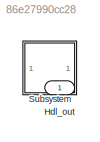
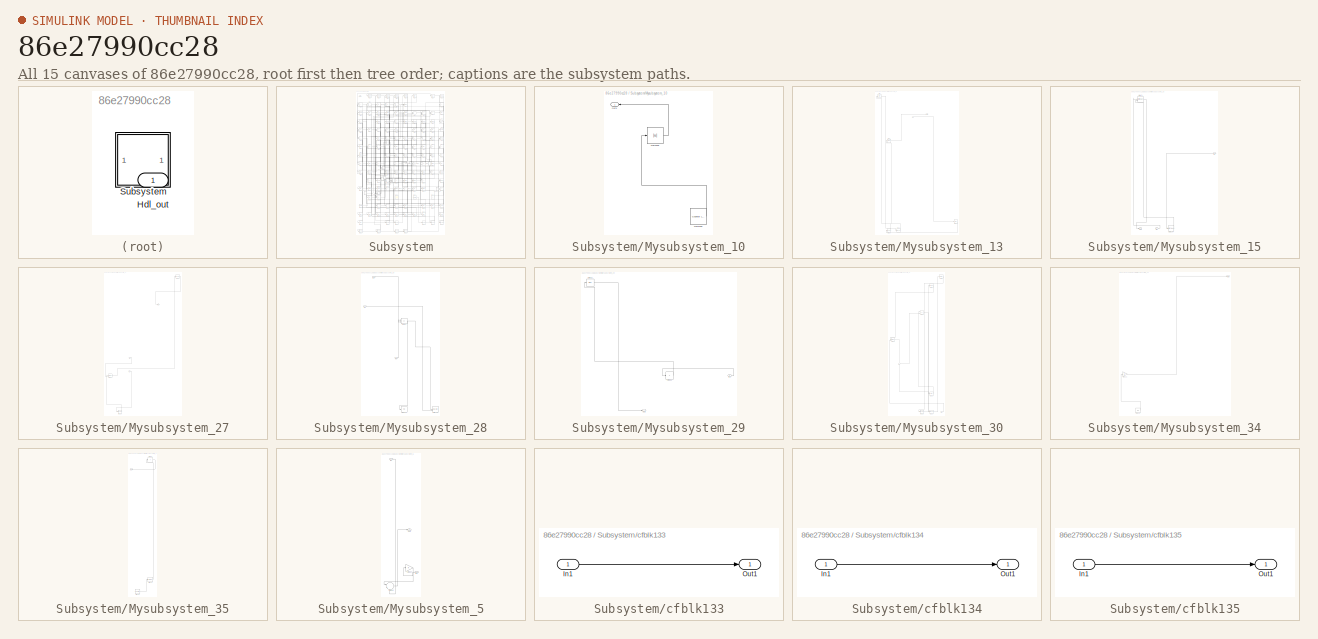
[diagram: thumbnail index - all 15 canvases of the model, root first then tree order]
MODEL slx_86e27990cc28
KIND model
CONFIG AbsTol = auto
CONFIG EnableMultiTasking = off
CONFIG FixedStep = auto
CONFIG MaxStep = auto
CONFIG MinStep = auto
CONFIG RelTol = 1e-3
CONFIG SampleTimeConstraint = Unconstrained
CONFIG SolverName = VariableStepAuto
CONFIG StartTime = 0.0
CONFIG StopTime = 10.0
BLOCK [Outport] Hdl_out
  OutDataTypeStr = uint8
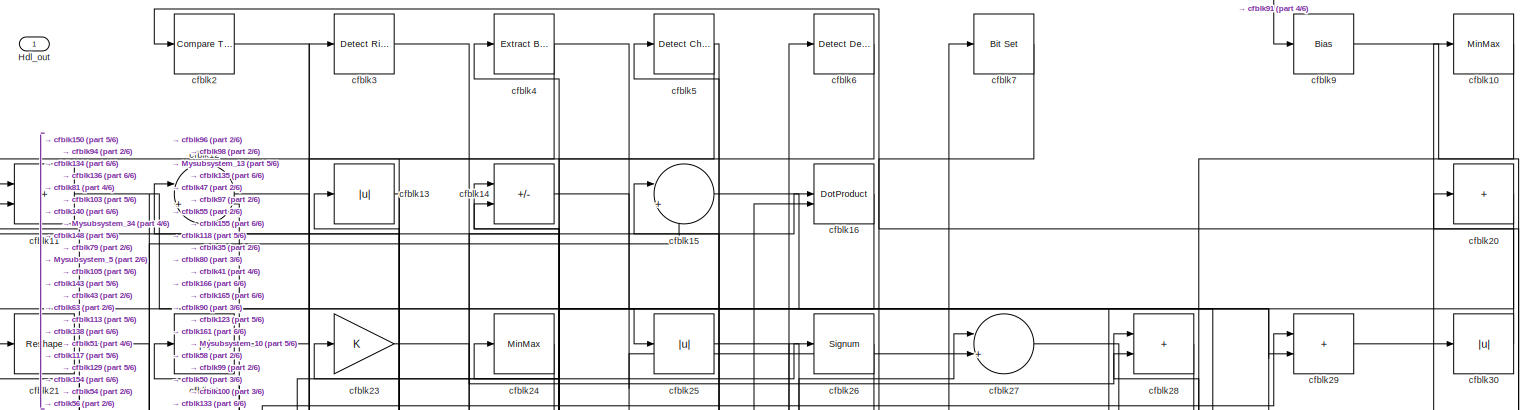
[diagram: Subsystem - part 1/6, full width, top band]
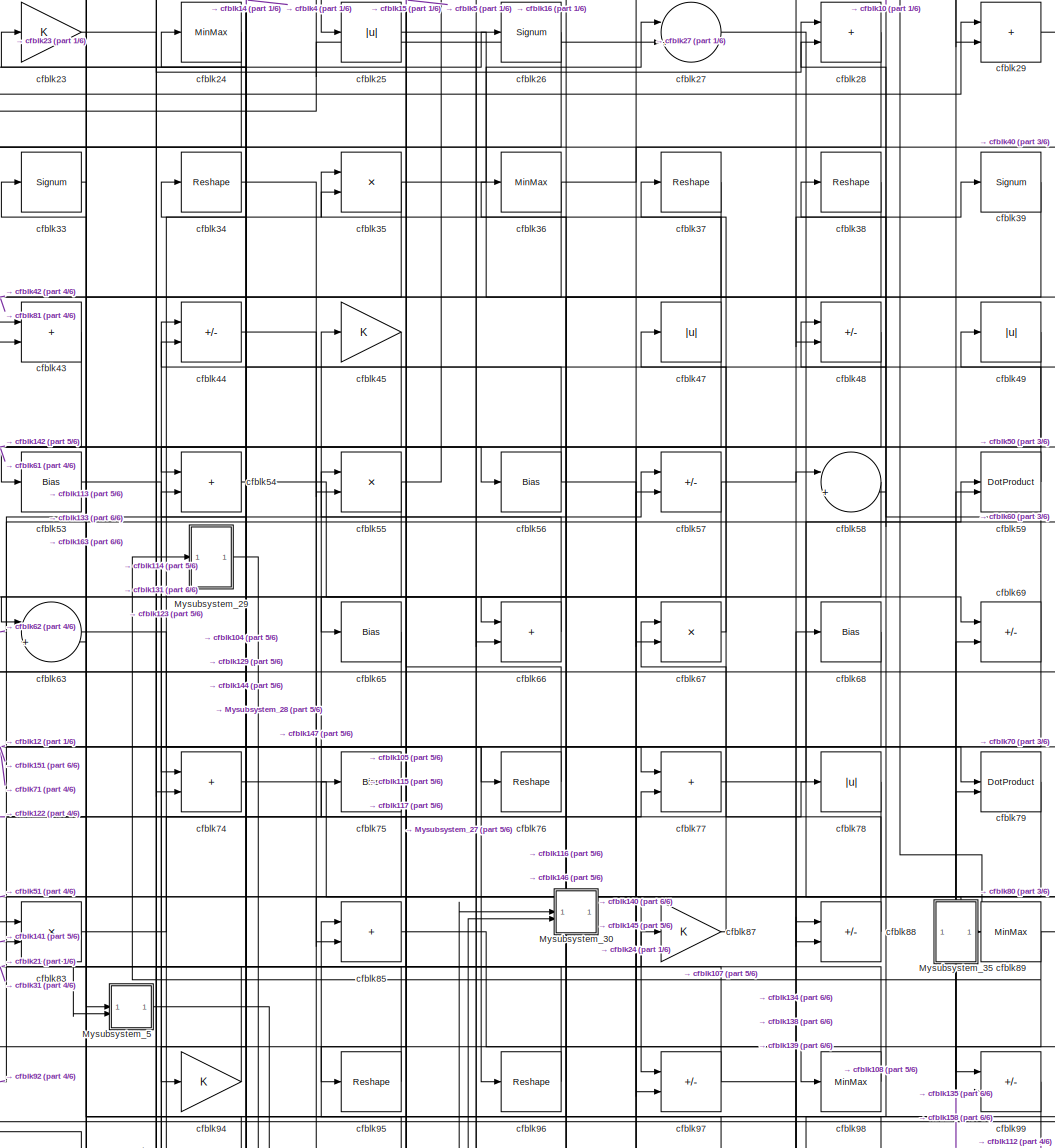
[diagram: Subsystem - part 2/6, central region]
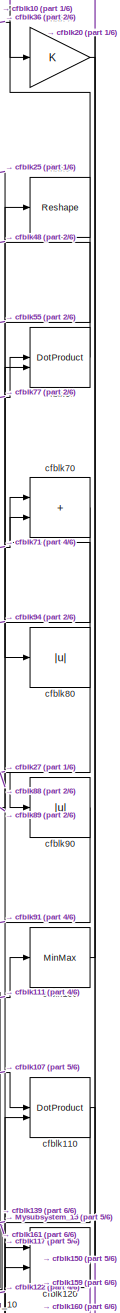
[diagram: Subsystem - part 3/6, middle right region]
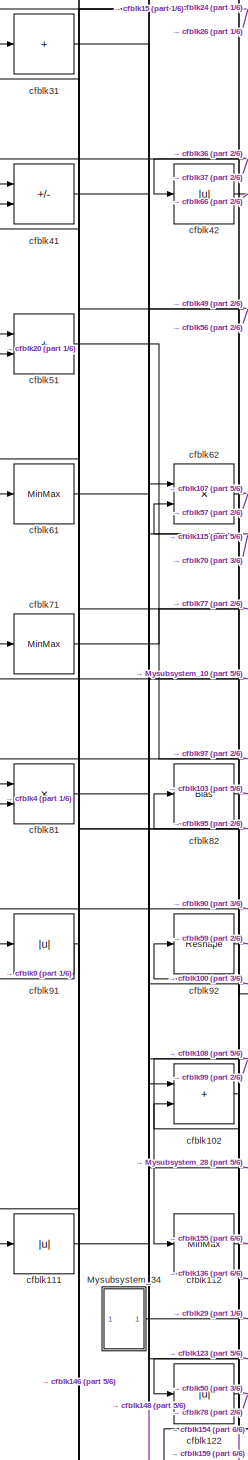
[diagram: Subsystem - part 4/6, middle left region]
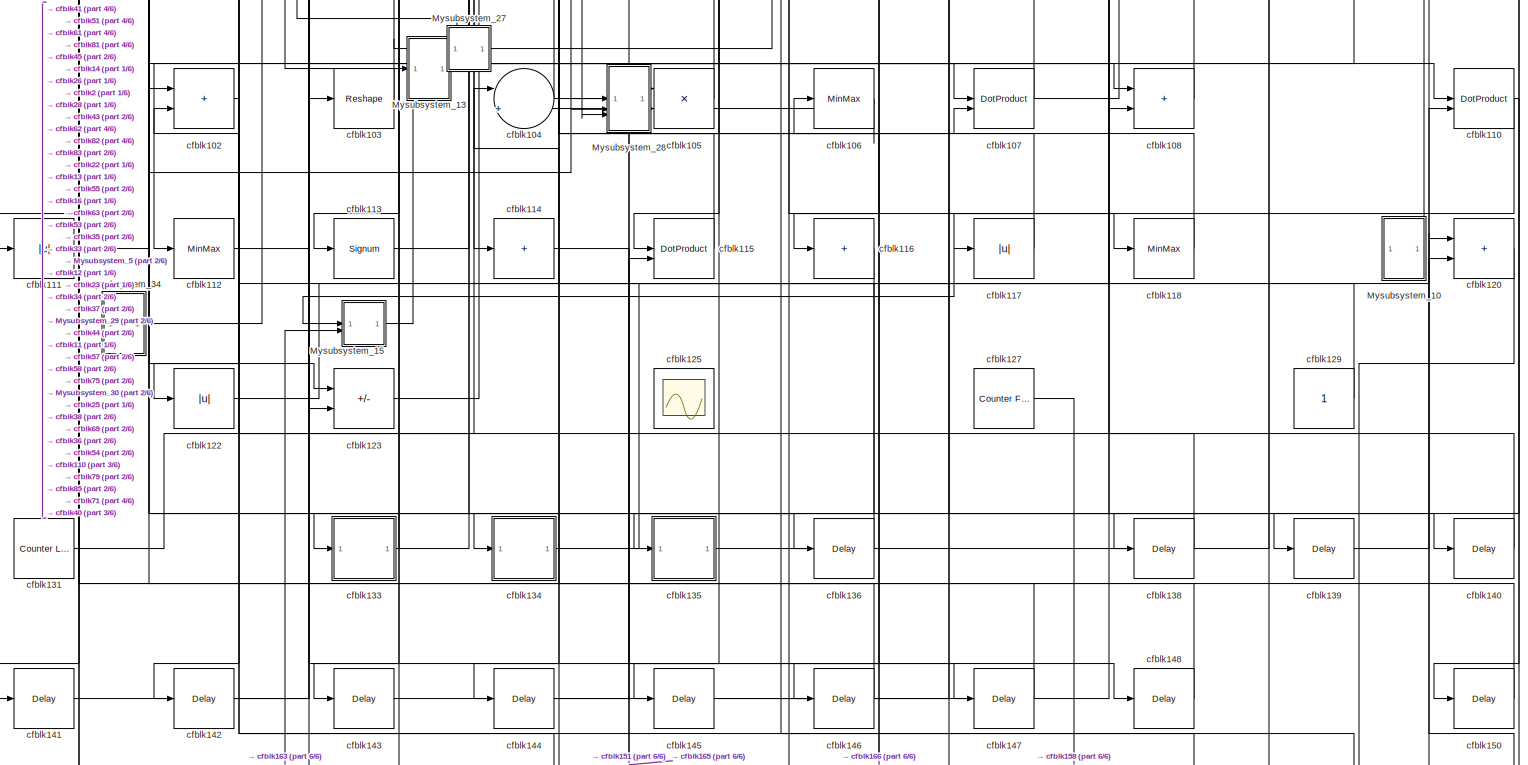
[diagram: Subsystem - part 5/6, full width, bottom band]
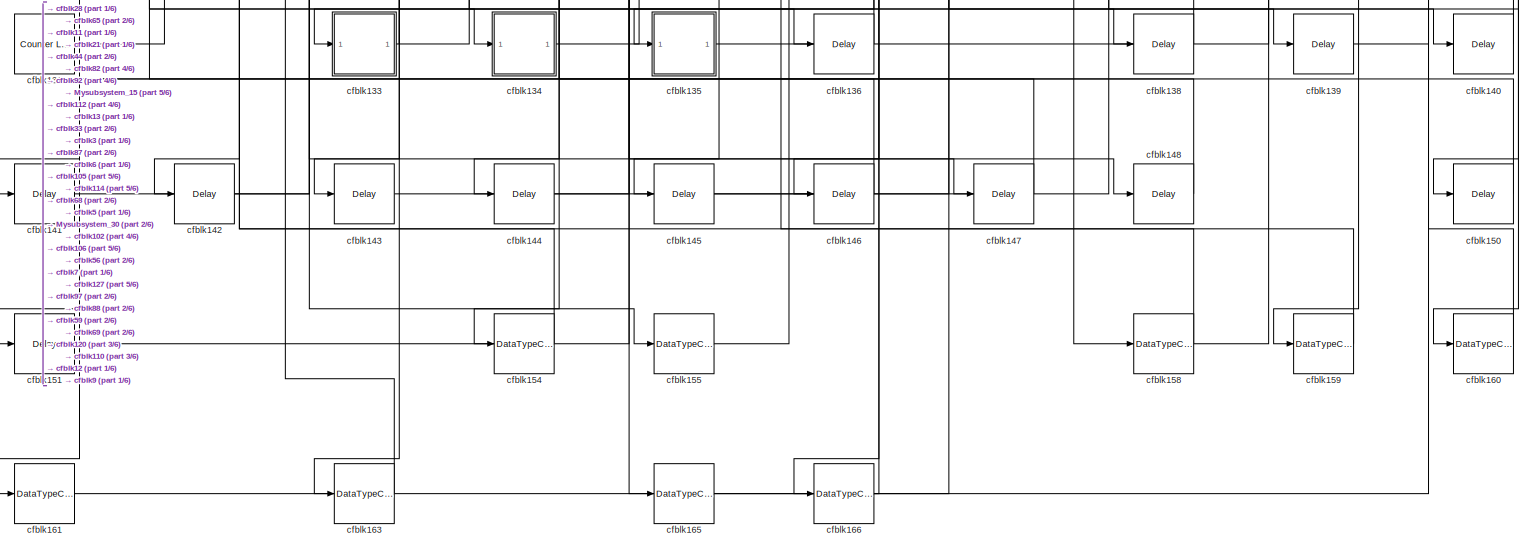
[diagram: Subsystem - part 6/6, full width, bottom band]
BLOCK [SubSystem] Subsystem
BLOCK [Outport] Subsystem/Hdl_out
  OutDataTypeStr = uint8
BLOCK [SubSystem] Subsystem/Mysubsystem_10
  RTWFcnName = Mysubsystem_10
  RTWFcnNameOpts = User specified
  RTWFileNameOpts = Use function name
  RTWSystemCode = Reusable function
  TreatAsAtomicUnit = on
BLOCK [Outport] Subsystem/Mysubsystem_10/Out1
BLOCK [Abs] Subsystem/Mysubsystem_10/cfblk109
  SaturateOnIntegerOverflow = off
BLOCK [Reference] Subsystem/Mysubsystem_10/cfblk130  REF=hdlsllib/Sources/Counter
Limited
  SourceBlock = hdlsllib/Sources/Counter\nLimited
  SourceType = Counter Limited
BLOCK [SubSystem] Subsystem/Mysubsystem_13
  RTWFcnName = Mysubsystem_13
  RTWFcnNameOpts = User specified
  RTWFileNameOpts = Use function name
  RTWSystemCode = Reusable function
  TreatAsAtomicUnit = on
BLOCK [Inport] Subsystem/Mysubsystem_13/In1
BLOCK [Outport] Subsystem/Mysubsystem_13/Out1
BLOCK [Reference] Subsystem/Mysubsystem_13/cfblk1  REF=simulink/Logic and Bit
Operations/Bit Set
  LibrarySourceBlock = hdlsllib/Logic and Bit\nOperations/Bit Set
  SourceBlock = simulink/Logic and Bit\nOperations/Bit Set
  SourceType = Bit Set
BLOCK [Delay] Subsystem/Mysubsystem_13/cfblk149
  InputPortMap = u0
  SampleTime = 1
BLOCK [DataTypeConversion] Subsystem/Mysubsystem_13/cfblk152
  OutDataTypeStr = boolean
  RndMeth = Floor
  SaturateOnIntegerOverflow = off
BLOCK [DataTypeConversion] Subsystem/Mysubsystem_13/cfblk153
  OutDataTypeStr = uint8
  RndMeth = Floor
  SaturateOnIntegerOverflow = off
BLOCK [Signum] Subsystem/Mysubsystem_13/cfblk52
BLOCK [SubSystem] Subsystem/Mysubsystem_15
  RTWFcnName = Mysubsystem_15
  RTWFcnNameOpts = User specified
  RTWFileNameOpts = Use function name
  RTWSystemCode = Reusable function
  TreatAsAtomicUnit = on
BLOCK [Inport] Subsystem/Mysubsystem_15/In1
BLOCK [Inport] Subsystem/Mysubsystem_15/In2
  Port = 2
BLOCK [Outport] Subsystem/Mysubsystem_15/Out1
BLOCK [DataTypeConversion] Subsystem/Mysubsystem_15/cfblk164
  OutDataTypeStr = uint8
  RndMeth = Floor
  SaturateOnIntegerOverflow = off
BLOCK [DotProduct] Subsystem/Mysubsystem_15/cfblk72
  OutDataTypeStr = Inherit: Inherit via internal rule
BLOCK [SubSystem] Subsystem/Mysubsystem_27
  RTWFcnName = Mysubsystem_27
  RTWFcnNameOpts = User specified
  RTWFileNameOpts = Use function name
  RTWSystemCode = Reusable function
  TreatAsAtomicUnit = on
BLOCK [Inport] Subsystem/Mysubsystem_27/In1
BLOCK [Inport] Subsystem/Mysubsystem_27/In2
  Port = 2
BLOCK [Outport] Subsystem/Mysubsystem_27/Out1
BLOCK [DotProduct] Subsystem/Mysubsystem_27/cfblk121
  OutDataTypeStr = Inherit: Inherit via internal rule
BLOCK [DataTypeConversion] Subsystem/Mysubsystem_27/cfblk162
  OutDataTypeStr = uint8
  RndMeth = Floor
  SaturateOnIntegerOverflow = off
BLOCK [Signum] Subsystem/Mysubsystem_27/cfblk18
BLOCK [SubSystem] Subsystem/Mysubsystem_28
  RTWFcnName = Mysubsystem_28
  RTWFcnNameOpts = User specified
  RTWFileNameOpts = Use function name
  RTWSystemCode = Reusable function
  TreatAsAtomicUnit = on
BLOCK [Inport] Subsystem/Mysubsystem_28/In1
BLOCK [Inport] Subsystem/Mysubsystem_28/In2
  Port = 2
BLOCK [Inport] Subsystem/Mysubsystem_28/In3
  Port = 3
BLOCK [Display] Subsystem/Mysubsystem_28/cfblk124
  Decimation = 1
BLOCK [Record] Subsystem/Mysubsystem_28/cfblk126
  CompatibilityTag = XY
  FileSettingsInternal = {"entries":[{"content":{"excelSettings":{"content":{},"type":"Streamout.ExcelSettings"}},"type":"Streamout.FileSettingStorage","uuid":""}],"packageUris":["http:\/\/schema.mathworks.com\/mf0\/streamout_blocks\/R2020a"],"version":"1.0"}
  Layout = [1 1]
  SignalsInternal = {"entries":[{"content":{},"type":"RecordBlkView.InputSignals","uuid":""}],"packageUris":["http:\/\/schema.mathworks.com\/mf0\/streamout_blocks\/R2020a"],"version":"1.0"}
  VisualizationBindings = {"xyplotplugin":{"info":[{"series":[],"subplotID":1}]}}
  st = -1
BLOCK [Sum] Subsystem/Mysubsystem_28/cfblk64
  IconShape = rectangular
  Inputs = +-
BLOCK [SubSystem] Subsystem/Mysubsystem_29
  RTWFcnName = Mysubsystem_29
  RTWFcnNameOpts = User specified
  RTWFileNameOpts = Use function name
  RTWSystemCode = Reusable function
  TreatAsAtomicUnit = on
BLOCK [Inport] Subsystem/Mysubsystem_29/In1
BLOCK [Outport] Subsystem/Mysubsystem_29/Out1
BLOCK [Bias] Subsystem/Mysubsystem_29/cfblk32
  Bias = 0.0
  SaturateOnIntegerOverflow = off
BLOCK [Sum] Subsystem/Mysubsystem_29/cfblk86
  IconShape = rectangular
  Inputs = +
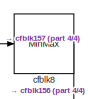
[diagram: Subsystem/Mysubsystem_30 - part 1/4, top right region]
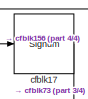
[diagram: Subsystem/Mysubsystem_30 - part 2/4, top right region]
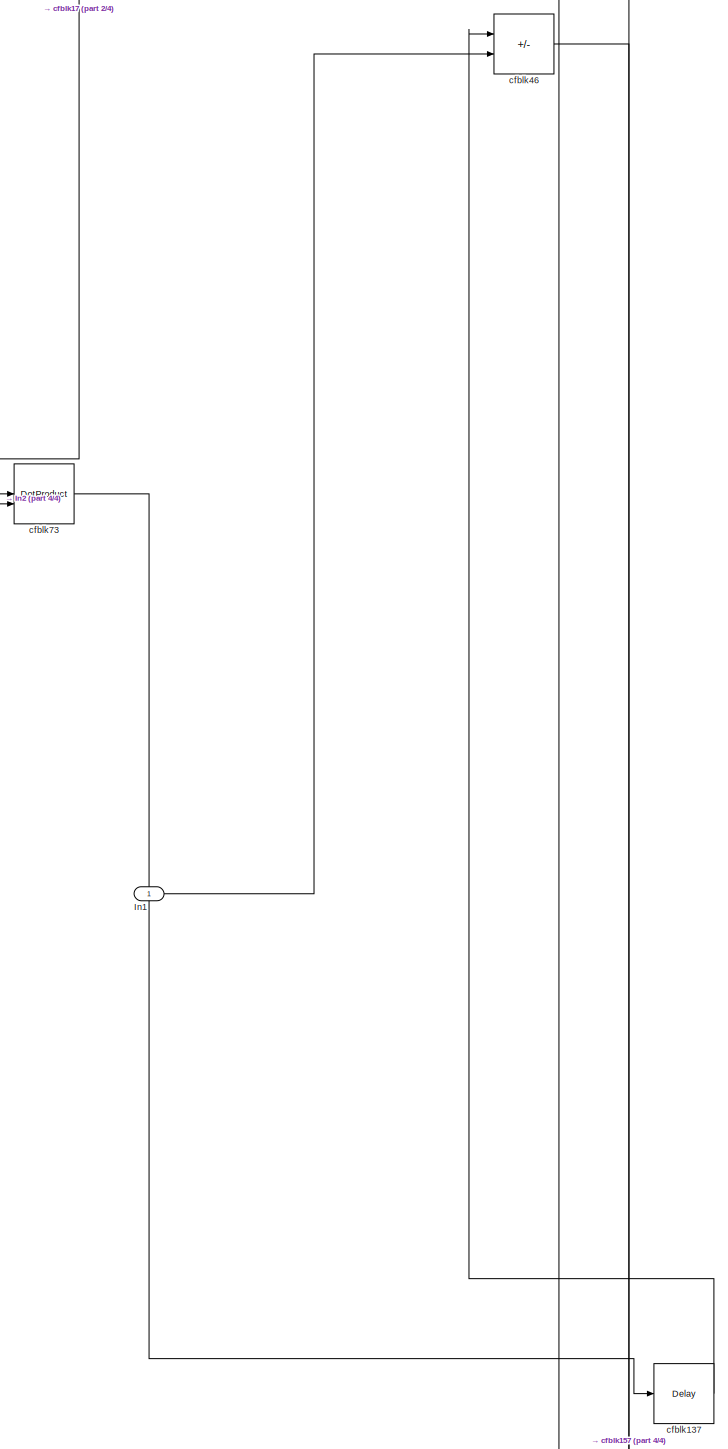
[diagram: Subsystem/Mysubsystem_30 - part 3/4, full width, middle band]
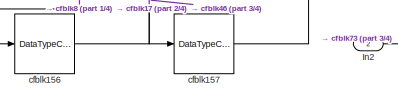
[diagram: Subsystem/Mysubsystem_30 - part 4/4, bottom right region]
BLOCK [SubSystem] Subsystem/Mysubsystem_30
  RTWFcnName = Mysubsystem_30
  RTWFcnNameOpts = User specified
  RTWFileNameOpts = Use function name
  RTWSystemCode = Reusable function
  TreatAsAtomicUnit = on
BLOCK [Inport] Subsystem/Mysubsystem_30/In1
BLOCK [Inport] Subsystem/Mysubsystem_30/In2
  Port = 2
BLOCK [Delay] Subsystem/Mysubsystem_30/cfblk137
  InputPortMap = u0
  SampleTime = 1
BLOCK [DataTypeConversion] Subsystem/Mysubsystem_30/cfblk156
  OutDataTypeStr = uint8
  RndMeth = Floor
  SaturateOnIntegerOverflow = off
BLOCK [DataTypeConversion] Subsystem/Mysubsystem_30/cfblk157
  OutDataTypeStr = uint8
  RndMeth = Floor
  SaturateOnIntegerOverflow = off
BLOCK [Signum] Subsystem/Mysubsystem_30/cfblk17
BLOCK [Sum] Subsystem/Mysubsystem_30/cfblk46
  IconShape = rectangular
  Inputs = +-
BLOCK [DotProduct] Subsystem/Mysubsystem_30/cfblk73
  OutDataTypeStr = Inherit: Inherit via internal rule
BLOCK [MinMax] Subsystem/Mysubsystem_30/cfblk8
BLOCK [SubSystem] Subsystem/Mysubsystem_34
  RTWFcnName = Mysubsystem_34
  RTWFcnNameOpts = User specified
  RTWFileNameOpts = Use function name
  RTWSystemCode = Reusable function
  TreatAsAtomicUnit = on
BLOCK [Outport] Subsystem/Mysubsystem_34/Out1
BLOCK [Gain] Subsystem/Mysubsystem_34/cfblk101
BLOCK [Ground] Subsystem/Mysubsystem_34/cfblk132
BLOCK [SubSystem] Subsystem/Mysubsystem_35
  RTWFcnName = Mysubsystem_35
  RTWFcnNameOpts = User specified
  RTWFileNameOpts = Use function name
  RTWSystemCode = Reusable function
  TreatAsAtomicUnit = on
BLOCK [Outport] Subsystem/Mysubsystem_35/Out1
BLOCK [MinMax] Subsystem/Mysubsystem_35/cfblk119
BLOCK [Reference] Subsystem/Mysubsystem_35/cfblk128  REF=hdlsllib/Sources/Counter
Free-Running
  SourceBlock = hdlsllib/Sources/Counter\nFree-Running
  SourceType = Counter Free-Running
BLOCK [Sum] Subsystem/Mysubsystem_35/cfblk19
  IconShape = rectangular
  Inputs = +
BLOCK [SubSystem] Subsystem/Mysubsystem_5
  RTWFcnName = Mysubsystem_5
  RTWFcnNameOpts = User specified
  RTWFileNameOpts = Use function name
  RTWSystemCode = Reusable function
  TreatAsAtomicUnit = on
BLOCK [Inport] Subsystem/Mysubsystem_5/In1
BLOCK [Inport] Subsystem/Mysubsystem_5/In2
  Port = 2
BLOCK [Outport] Subsystem/Mysubsystem_5/Out1
BLOCK [Gain] Subsystem/Mysubsystem_5/cfblk84
BLOCK [Sum] Subsystem/Mysubsystem_5/cfblk93
  Inputs = |++
BLOCK [MinMax] Subsystem/cfblk10
  OutDataTypeStr = uint8
BLOCK [MinMax] Subsystem/cfblk100
  OutDataTypeStr = uint8
BLOCK [Sum] Subsystem/cfblk102
  IconShape = rectangular
  OutDataTypeStr = uint8
BLOCK [Reshape] Subsystem/cfblk103
BLOCK [Sum] Subsystem/cfblk104
  Inputs = |++
  OutDataTypeStr = uint8
BLOCK [Product] Subsystem/cfblk105
  Inputs = */
  OutDataTypeStr = uint8
  RndMeth = Zero
  SaturateOnIntegerOverflow = on
BLOCK [MinMax] Subsystem/cfblk106
  OutDataTypeStr = uint8
BLOCK [DotProduct] Subsystem/cfblk107
  OutDataTypeStr = uint8
BLOCK [Sum] Subsystem/cfblk108
  IconShape = rectangular
  OutDataTypeStr = uint8
BLOCK [Sum] Subsystem/cfblk11
  IconShape = rectangular
  OutDataTypeStr = uint8
BLOCK [DotProduct] Subsystem/cfblk110
  OutDataTypeStr = uint8
BLOCK [Abs] Subsystem/cfblk111
  OutDataTypeStr = uint8
  SaturateOnIntegerOverflow = off
BLOCK [MinMax] Subsystem/cfblk112
  OutDataTypeStr = uint8
BLOCK [Signum] Subsystem/cfblk113
BLOCK [Sum] Subsystem/cfblk114
  IconShape = rectangular
  Inputs = +
  OutDataTypeStr = uint8
BLOCK [DotProduct] Subsystem/cfblk115
  OutDataTypeStr = uint8
BLOCK [Sum] Subsystem/cfblk116
  IconShape = rectangular
  Inputs = +
  OutDataTypeStr = uint8
BLOCK [Abs] Subsystem/cfblk117
  OutDataTypeStr = uint8
  SaturateOnIntegerOverflow = off
BLOCK [MinMax] Subsystem/cfblk118
  OutDataTypeStr = uint8
BLOCK [Sum] Subsystem/cfblk12
  Inputs = |++
  OutDataTypeStr = uint8
BLOCK [Sum] Subsystem/cfblk120
  IconShape = rectangular
  OutDataTypeStr = uint8
BLOCK [Abs] Subsystem/cfblk122
  OutDataTypeStr = uint8
  SaturateOnIntegerOverflow = off
BLOCK [Sum] Subsystem/cfblk123
  IconShape = rectangular
  Inputs = +-
  OutDataTypeStr = uint8
BLOCK [Scope] Subsystem/cfblk125
  Floating = on
  NumInputPorts = 1
  ScopeSpecificationString = Simulink.scopes.TimeScopeBlockCfg('CurrentConfiguration', extmgr.ConfigurationSet(extmgr.Configuration('Core','General UI',true,'FigureColor',[0.156862745098039 0.156862745098039 0.156862745098039]),extmgr.Configuration('Core','Source UI',true),extmgr.Configuration('Sources','WiredSimulink',true,'DataLoggingSaveFormat','StructureWithTime','DataLoggingLimitDataPoints',true,'DataLoggingDecimation','...<+2674ch>
BLOCK [Reference] Subsystem/cfblk127  REF=hdlsllib/Sources/Counter
Free-Running
  SourceBlock = hdlsllib/Sources/Counter\nFree-Running
  SourceType = Counter Free-Running
BLOCK [Constant] Subsystem/cfblk129
  OutDataTypeStr = uint8
  SampleTime = -1
BLOCK [Abs] Subsystem/cfblk13
  OutDataTypeStr = uint8
  SaturateOnIntegerOverflow = off
BLOCK [Reference] Subsystem/cfblk131  REF=hdlsllib/Sources/Counter
Limited
  SourceBlock = hdlsllib/Sources/Counter\nLimited
  SourceType = Counter Limited
BLOCK [SubSystem] Subsystem/cfblk133
  LibrarySourceBlock = hdlsllib/Ports &\nSubsystems/Subsystem
BLOCK [Inport] Subsystem/cfblk133/In1
BLOCK [Outport] Subsystem/cfblk133/Out1
BLOCK [SubSystem] Subsystem/cfblk134
  LibrarySourceBlock = hdlsllib/Ports &\nSubsystems/Subsystem
BLOCK [Inport] Subsystem/cfblk134/In1
BLOCK [Outport] Subsystem/cfblk134/Out1
BLOCK [SubSystem] Subsystem/cfblk135
  LibrarySourceBlock = hdlsllib/Ports &\nSubsystems/Subsystem
BLOCK [Inport] Subsystem/cfblk135/In1
BLOCK [Outport] Subsystem/cfblk135/Out1
BLOCK [Delay] Subsystem/cfblk136
  InputPortMap = u0
  SampleTime = 1
BLOCK [Delay] Subsystem/cfblk138
  InputPortMap = u0
  SampleTime = 1
BLOCK [Delay] Subsystem/cfblk139
  InputPortMap = u0
  SampleTime = 1
BLOCK [Sum] Subsystem/cfblk14
  IconShape = rectangular
  Inputs = +-
  OutDataTypeStr = uint8
BLOCK [Delay] Subsystem/cfblk140
  InputPortMap = u0
  SampleTime = 1
BLOCK [Delay] Subsystem/cfblk141
  InputPortMap = u0
  SampleTime = 1
BLOCK [Delay] Subsystem/cfblk142
  InputPortMap = u0
  SampleTime = 1
BLOCK [Delay] Subsystem/cfblk143
  InputPortMap = u0
  SampleTime = 1
BLOCK [Delay] Subsystem/cfblk144
  InputPortMap = u0
  SampleTime = 1
BLOCK [Delay] Subsystem/cfblk145
  InputPortMap = u0
  SampleTime = 1
BLOCK [Delay] Subsystem/cfblk146
  InputPortMap = u0
  SampleTime = 1
BLOCK [Delay] Subsystem/cfblk147
  InputPortMap = u0
  SampleTime = 1
BLOCK [Delay] Subsystem/cfblk148
  InputPortMap = u0
  SampleTime = 1
BLOCK [Sum] Subsystem/cfblk15
  Inputs = |++
  OutDataTypeStr = uint8
BLOCK [Delay] Subsystem/cfblk150
  InputPortMap = u0
  SampleTime = 1
BLOCK [Delay] Subsystem/cfblk151
  InputPortMap = u0
  SampleTime = 1
BLOCK [DataTypeConversion] Subsystem/cfblk154
  OutDataTypeStr = uint8
  RndMeth = Floor
  SaturateOnIntegerOverflow = off
BLOCK [DataTypeConversion] Subsystem/cfblk155
  OutDataTypeStr = uint8
  RndMeth = Floor
  SaturateOnIntegerOverflow = off
BLOCK [DataTypeConversion] Subsystem/cfblk158
  OutDataTypeStr = uint8
  RndMeth = Floor
  SaturateOnIntegerOverflow = off
BLOCK [DataTypeConversion] Subsystem/cfblk159
  OutDataTypeStr = uint8
  RndMeth = Floor
  SaturateOnIntegerOverflow = off
BLOCK [DotProduct] Subsystem/cfblk16
  OutDataTypeStr = uint8
BLOCK [DataTypeConversion] Subsystem/cfblk160
  OutDataTypeStr = uint8
  RndMeth = Floor
  SaturateOnIntegerOverflow = off
BLOCK [DataTypeConversion] Subsystem/cfblk161
  OutDataTypeStr = uint8
  RndMeth = Floor
  SaturateOnIntegerOverflow = off
BLOCK [DataTypeConversion] Subsystem/cfblk163
  OutDataTypeStr = uint8
  RndMeth = Floor
  SaturateOnIntegerOverflow = off
BLOCK [DataTypeConversion] Subsystem/cfblk165
  OutDataTypeStr = uint8
  RndMeth = Floor
  SaturateOnIntegerOverflow = off
BLOCK [DataTypeConversion] Subsystem/cfblk166
  OutDataTypeStr = uint8
  RndMeth = Floor
  SaturateOnIntegerOverflow = off
BLOCK [Reference] Subsystem/cfblk2  REF=hdlsllib/Logic and Bit
Operations/Compare
To Zero
  SourceBlock = hdlsllib/Logic and Bit\nOperations/Compare\nTo Zero
  SourceType = Compare To Zero
BLOCK [Sum] Subsystem/cfblk20
  IconShape = rectangular
  Inputs = +
  OutDataTypeStr = uint8
BLOCK [Reshape] Subsystem/cfblk21
BLOCK [Abs] Subsystem/cfblk22
  OutDataTypeStr = uint8
  SaturateOnIntegerOverflow = off
BLOCK [Gain] Subsystem/cfblk23
  OutDataTypeStr = uint8
BLOCK [MinMax] Subsystem/cfblk24
  OutDataTypeStr = uint8
BLOCK [Abs] Subsystem/cfblk25
  OutDataTypeStr = uint8
  SaturateOnIntegerOverflow = off
BLOCK [Signum] Subsystem/cfblk26
BLOCK [Sum] Subsystem/cfblk27
  Inputs = |++
  OutDataTypeStr = uint8
BLOCK [Sum] Subsystem/cfblk28
  IconShape = rectangular
  OutDataTypeStr = uint8
BLOCK [Sum] Subsystem/cfblk29
  IconShape = rectangular
  OutDataTypeStr = uint8
BLOCK [Reference] Subsystem/cfblk3  REF=hdlsllib/Logic and Bit
Operations/Detect Rise
Nonnegative
  SourceBlock = hdlsllib/Logic and Bit\nOperations/Detect Rise\nNonnegative
  SourceType = Detect Rise Nonnegative
BLOCK [Abs] Subsystem/cfblk30
  OutDataTypeStr = uint8
  SaturateOnIntegerOverflow = off
BLOCK [Sum] Subsystem/cfblk31
  IconShape = rectangular
  Inputs = +
  OutDataTypeStr = uint8
BLOCK [Signum] Subsystem/cfblk33
BLOCK [Reshape] Subsystem/cfblk34
BLOCK [Product] Subsystem/cfblk35
  Inputs = */
  OutDataTypeStr = uint8
  RndMeth = Zero
  SaturateOnIntegerOverflow = on
BLOCK [MinMax] Subsystem/cfblk36
  OutDataTypeStr = uint8
BLOCK [Reshape] Subsystem/cfblk37
BLOCK [Reshape] Subsystem/cfblk38
BLOCK [Signum] Subsystem/cfblk39
BLOCK [Reference] Subsystem/cfblk4  REF=simulink/Logic and Bit
Operations/Extract Bits
  LibrarySourceBlock = hdlsllib/Logic and Bit\nOperations/Extract Bits
  SourceBlock = simulink/Logic and Bit\nOperations/Extract Bits
  SourceType = Extract Bits
BLOCK [Gain] Subsystem/cfblk40
  OutDataTypeStr = uint8
BLOCK [Sum] Subsystem/cfblk41
  IconShape = rectangular
  Inputs = +-
  OutDataTypeStr = uint8
BLOCK [Abs] Subsystem/cfblk42
  OutDataTypeStr = uint8
  SaturateOnIntegerOverflow = off
BLOCK [Sum] Subsystem/cfblk43
  IconShape = rectangular
  OutDataTypeStr = uint8
BLOCK [Sum] Subsystem/cfblk44
  IconShape = rectangular
  Inputs = +-
  OutDataTypeStr = uint8
BLOCK [Gain] Subsystem/cfblk45
  OutDataTypeStr = uint8
BLOCK [Abs] Subsystem/cfblk47
  OutDataTypeStr = uint8
  SaturateOnIntegerOverflow = off
BLOCK [Sum] Subsystem/cfblk48
  IconShape = rectangular
  Inputs = +-
  OutDataTypeStr = uint8
BLOCK [Abs] Subsystem/cfblk49
  OutDataTypeStr = uint8
  SaturateOnIntegerOverflow = off
BLOCK [Reference] Subsystem/cfblk5  REF=simulink/Logic and Bit
Operations/Detect
Change
  LibrarySourceBlock = hdlsllib/Logic and Bit\nOperations/Detect\nChange
  SourceBlock = simulink/Logic and Bit\nOperations/Detect\nChange
  SourceType = Detect Change
BLOCK [Reshape] Subsystem/cfblk50
BLOCK [Sum] Subsystem/cfblk51
  IconShape = rectangular
  OutDataTypeStr = uint8
BLOCK [Bias] Subsystem/cfblk53
  Bias = 0.0
  SaturateOnIntegerOverflow = off
BLOCK [Sum] Subsystem/cfblk54
  IconShape = rectangular
  OutDataTypeStr = uint8
BLOCK [Product] Subsystem/cfblk55
  Inputs = */
  OutDataTypeStr = uint8
  RndMeth = Zero
  SaturateOnIntegerOverflow = on
BLOCK [Bias] Subsystem/cfblk56
  Bias = 0.0
  SaturateOnIntegerOverflow = off
BLOCK [Sum] Subsystem/cfblk57
  IconShape = rectangular
  Inputs = +-
  OutDataTypeStr = uint8
BLOCK [Sum] Subsystem/cfblk58
  Inputs = |++
  OutDataTypeStr = uint8
BLOCK [DotProduct] Subsystem/cfblk59
  OutDataTypeStr = uint8
BLOCK [Reference] Subsystem/cfblk6  REF=simulink/Logic and Bit
Operations/Detect
Decrease
  LibrarySourceBlock = hdlsllib/Logic and Bit\nOperations/Detect\nDecrease
  SourceBlock = simulink/Logic and Bit\nOperations/Detect\nDecrease
  SourceType = Detect Decrease
BLOCK [DotProduct] Subsystem/cfblk60
  OutDataTypeStr = uint8
BLOCK [MinMax] Subsystem/cfblk61
  OutDataTypeStr = uint8
BLOCK [Product] Subsystem/cfblk62
  Inputs = */
  OutDataTypeStr = uint8
  RndMeth = Zero
  SaturateOnIntegerOverflow = on
BLOCK [Sum] Subsystem/cfblk63
  Inputs = |++
  OutDataTypeStr = uint8
BLOCK [Bias] Subsystem/cfblk65
  Bias = 0.0
  SaturateOnIntegerOverflow = off
BLOCK [Sum] Subsystem/cfblk66
  IconShape = rectangular
  OutDataTypeStr = uint8
BLOCK [Product] Subsystem/cfblk67
  Inputs = */
  OutDataTypeStr = uint8
  RndMeth = Zero
  SaturateOnIntegerOverflow = on
BLOCK [Bias] Subsystem/cfblk68
  Bias = 0.0
  SaturateOnIntegerOverflow = off
BLOCK [Sum] Subsystem/cfblk69
  IconShape = rectangular
  Inputs = +-
  OutDataTypeStr = uint8
BLOCK [Reference] Subsystem/cfblk7  REF=simulink/Logic and Bit
Operations/Bit Set
  LibrarySourceBlock = hdlsllib/Logic and Bit\nOperations/Bit Set
  SourceBlock = simulink/Logic and Bit\nOperations/Bit Set
  SourceType = Bit Set
BLOCK [Sum] Subsystem/cfblk70
  IconShape = rectangular
  OutDataTypeStr = uint8
BLOCK [MinMax] Subsystem/cfblk71
  OutDataTypeStr = uint8
BLOCK [Sum] Subsystem/cfblk74
  IconShape = rectangular
  OutDataTypeStr = uint8
BLOCK [Bias] Subsystem/cfblk75
  Bias = 0.0
  SaturateOnIntegerOverflow = off
BLOCK [Reshape] Subsystem/cfblk76
BLOCK [Sum] Subsystem/cfblk77
  IconShape = rectangular
  OutDataTypeStr = uint8
BLOCK [Abs] Subsystem/cfblk78
  OutDataTypeStr = uint8
  SaturateOnIntegerOverflow = off
BLOCK [DotProduct] Subsystem/cfblk79
  OutDataTypeStr = uint8
BLOCK [Abs] Subsystem/cfblk80
  OutDataTypeStr = uint8
  SaturateOnIntegerOverflow = off
BLOCK [Product] Subsystem/cfblk81
  Inputs = */
  OutDataTypeStr = uint8
  RndMeth = Zero
  SaturateOnIntegerOverflow = on
BLOCK [Bias] Subsystem/cfblk82
  Bias = 0.0
  SaturateOnIntegerOverflow = off
BLOCK [Product] Subsystem/cfblk83
  Inputs = */
  OutDataTypeStr = uint8
  RndMeth = Zero
  SaturateOnIntegerOverflow = on
BLOCK [Sum] Subsystem/cfblk85
  IconShape = rectangular
  OutDataTypeStr = uint8
BLOCK [Gain] Subsystem/cfblk87
  OutDataTypeStr = uint8
BLOCK [Sum] Subsystem/cfblk88
  IconShape = rectangular
  Inputs = +-
  OutDataTypeStr = uint8
BLOCK [MinMax] Subsystem/cfblk89
  OutDataTypeStr = uint8
BLOCK [Bias] Subsystem/cfblk9
  Bias = 0.0
  SaturateOnIntegerOverflow = off
BLOCK [Abs] Subsystem/cfblk90
  OutDataTypeStr = uint8
  SaturateOnIntegerOverflow = off
BLOCK [Abs] Subsystem/cfblk91
  OutDataTypeStr = uint8
  SaturateOnIntegerOverflow = off
BLOCK [Reshape] Subsystem/cfblk92
BLOCK [Gain] Subsystem/cfblk94
  OutDataTypeStr = uint8
BLOCK [Reshape] Subsystem/cfblk95
BLOCK [Reshape] Subsystem/cfblk96
BLOCK [Sum] Subsystem/cfblk97
  IconShape = rectangular
  Inputs = +-
  OutDataTypeStr = uint8
BLOCK [MinMax] Subsystem/cfblk98
  OutDataTypeStr = uint8
BLOCK [Sum] Subsystem/cfblk99
  IconShape = rectangular
  Inputs = +-
  OutDataTypeStr = uint8
LINE Subsystem/Mysubsystem_10/cfblk109:1 -> Subsystem/Mysubsystem_10/Out1:1
LINE Subsystem/Mysubsystem_10/cfblk130:1 -> Subsystem/Mysubsystem_10/cfblk109:1
NET Subsystem/Mysubsystem_10:1 -> Subsystem/cfblk28:1, Subsystem/cfblk71:1
LINE Subsystem/Mysubsystem_13/In1:1 -> Subsystem/Mysubsystem_13/cfblk149:1
LINE Subsystem/Mysubsystem_13/cfblk149:1 -> Subsystem/Mysubsystem_13/cfblk152:1
LINE Subsystem/Mysubsystem_13/cfblk152:1 -> Subsystem/Mysubsystem_13/cfblk1:1
LINE Subsystem/Mysubsystem_13/cfblk153:1 -> Subsystem/Mysubsystem_13/cfblk52:1
LINE Subsystem/Mysubsystem_13/cfblk1:1 -> Subsystem/Mysubsystem_13/cfblk153:1
LINE Subsystem/Mysubsystem_13/cfblk52:1 -> Subsystem/Mysubsystem_13/Out1:1
LINE Subsystem/Mysubsystem_13:1 -> Subsystem/cfblk26:1
LINE Subsystem/Mysubsystem_15/In1:1 -> Subsystem/Mysubsystem_15/cfblk164:1
LINE Subsystem/Mysubsystem_15/In2:1 -> Subsystem/Mysubsystem_15/cfblk72:1
LINE Subsystem/Mysubsystem_15/cfblk164:1 -> Subsystem/Mysubsystem_15/cfblk72:2
LINE Subsystem/Mysubsystem_15/cfblk72:1 -> Subsystem/Mysubsystem_15/Out1:1
LINE Subsystem/Mysubsystem_15:1 -> Subsystem/Mysubsystem_27:2
LINE Subsystem/Mysubsystem_27/In1:1 -> Subsystem/Mysubsystem_27/cfblk121:2
LINE Subsystem/Mysubsystem_27/In2:1 -> Subsystem/Mysubsystem_27/cfblk162:1
LINE Subsystem/Mysubsystem_27/cfblk121:1 -> Subsystem/Mysubsystem_27/cfblk18:1
LINE Subsystem/Mysubsystem_27/cfblk162:1 -> Subsystem/Mysubsystem_27/cfblk121:1
LINE Subsystem/Mysubsystem_27/cfblk18:1 -> Subsystem/Mysubsystem_27/Out1:1
LINE Subsystem/Mysubsystem_27:1 -> Subsystem/Mysubsystem_30:1
LINE Subsystem/Mysubsystem_28/In1:1 -> Subsystem/Mysubsystem_28/cfblk64:2
LINE Subsystem/Mysubsystem_28/In2:1 -> Subsystem/Mysubsystem_28/cfblk126:2
LINE Subsystem/Mysubsystem_28/In3:1 -> Subsystem/Mysubsystem_28/cfblk64:1
NET Subsystem/Mysubsystem_28/cfblk64:1 -> Subsystem/Mysubsystem_28/cfblk124:1, Subsystem/Mysubsystem_28/cfblk126:1
LINE Subsystem/Mysubsystem_29/In1:1 -> Subsystem/Mysubsystem_29/cfblk86:1
LINE Subsystem/Mysubsystem_29/cfblk32:1 -> Subsystem/Mysubsystem_29/Out1:1
LINE Subsystem/Mysubsystem_29/cfblk86:1 -> Subsystem/Mysubsystem_29/cfblk32:1
LINE Subsystem/Mysubsystem_29:1 -> Subsystem/Mysubsystem_28:1
LINE Subsystem/Mysubsystem_30/In1:1 -> Subsystem/Mysubsystem_30/cfblk46:2
LINE Subsystem/Mysubsystem_30/In2:1 -> Subsystem/Mysubsystem_30/cfblk73:2
LINE Subsystem/Mysubsystem_30/cfblk137:1 -> Subsystem/Mysubsystem_30/cfblk46:1
LINE Subsystem/Mysubsystem_30/cfblk156:1 -> Subsystem/Mysubsystem_30/cfblk17:1
LINE Subsystem/Mysubsystem_30/cfblk157:1 -> Subsystem/Mysubsystem_30/cfblk8:1
LINE Subsystem/Mysubsystem_30/cfblk17:1 -> Subsystem/Mysubsystem_30/cfblk73:1
LINE Subsystem/Mysubsystem_30/cfblk46:1 -> Subsystem/Mysubsystem_30/cfblk157:1
LINE Subsystem/Mysubsystem_30/cfblk73:1 -> Subsystem/Mysubsystem_30/cfblk137:1
LINE Subsystem/Mysubsystem_30/cfblk8:1 -> Subsystem/Mysubsystem_30/cfblk156:1
LINE Subsystem/Mysubsystem_34/cfblk101:1 -> Subsystem/Mysubsystem_34/Out1:1
LINE Subsystem/Mysubsystem_34/cfblk132:1 -> Subsystem/Mysubsystem_34/cfblk101:1
LINE Subsystem/Mysubsystem_34:1 -> Subsystem/cfblk29:1
LINE Subsystem/Mysubsystem_35/cfblk119:1 -> Subsystem/Mysubsystem_35/cfblk19:1
LINE Subsystem/Mysubsystem_35/cfblk128:1 -> Subsystem/Mysubsystem_35/cfblk119:1
LINE Subsystem/Mysubsystem_35/cfblk19:1 -> Subsystem/Mysubsystem_35/Out1:1
NET Subsystem/Mysubsystem_35:1 -> Subsystem/cfblk48:2, Subsystem/cfblk74:1
LINE Subsystem/Mysubsystem_5/In1:1 -> Subsystem/Mysubsystem_5/cfblk93:2
LINE Subsystem/Mysubsystem_5/In2:1 -> Subsystem/Mysubsystem_5/cfblk84:1
LINE Subsystem/Mysubsystem_5/cfblk84:1 -> Subsystem/Mysubsystem_5/cfblk93:1
LINE Subsystem/Mysubsystem_5/cfblk93:1 -> Subsystem/Mysubsystem_5/Out1:1
LINE Subsystem/Mysubsystem_5:1 -> Subsystem/Mysubsystem_28:3
LINE Subsystem/cfblk100:1 -> Subsystem/cfblk20:1
LINE Subsystem/cfblk102:1 -> Subsystem/cfblk122:1
NET Subsystem/cfblk103:1 -> Subsystem/Mysubsystem_27:1, Subsystem/cfblk22:1
NET Subsystem/cfblk104:1 -> Subsystem/cfblk107:2, Subsystem/cfblk33:1
LINE Subsystem/cfblk105:1 -> Subsystem/cfblk11:1
LINE Subsystem/cfblk106:1 -> Subsystem/cfblk104:2
NET Subsystem/cfblk107:1 -> Subsystem/cfblk110:1, Subsystem/cfblk36:1, Subsystem/cfblk54:2, Subsystem/cfblk79:2
LINE Subsystem/cfblk108:1 -> Subsystem/cfblk85:1
LINE Subsystem/cfblk10:1 -> Subsystem/cfblk58:2
NET Subsystem/cfblk110:1 -> Subsystem/Mysubsystem_15:1, Subsystem/cfblk117:1, Subsystem/cfblk160:1
LINE Subsystem/cfblk111:1 -> Subsystem/cfblk100:1
LINE Subsystem/cfblk112:1 -> Subsystem/cfblk155:1
LINE Subsystem/cfblk113:1 -> Subsystem/cfblk16:1
LINE Subsystem/cfblk114:1 -> Subsystem/cfblk165:1
LINE Subsystem/cfblk115:1 -> Subsystem/cfblk62:2
LINE Subsystem/cfblk116:1 -> Subsystem/cfblk145:1
NET Subsystem/cfblk117:1 -> Subsystem/cfblk12:1, Subsystem/cfblk75:1
LINE Subsystem/cfblk118:1 -> Subsystem/cfblk23:1
NET Subsystem/cfblk11:1 -> Subsystem/cfblk134:1, Subsystem/cfblk25:1
LINE Subsystem/cfblk120:1 -> Subsystem/cfblk159:1
NET Subsystem/cfblk122:1 -> Subsystem/cfblk50:1, Subsystem/cfblk78:1
LINE Subsystem/cfblk123:1 -> Subsystem/cfblk35:1
LINE Subsystem/cfblk127:1 -> Subsystem/cfblk158:1
NET Subsystem/cfblk129:1 -> Subsystem/Mysubsystem_5:2, Subsystem/cfblk14:2, Subsystem/cfblk34:1
LINE Subsystem/cfblk12:1 -> Subsystem/cfblk79:1
LINE Subsystem/cfblk131:1 -> Subsystem/cfblk44:1
LINE Subsystem/cfblk133/In1:1 -> Subsystem/cfblk133/Out1:1
NET Subsystem/cfblk133:1 -> Subsystem/cfblk13:1, Subsystem/cfblk87:1
LINE Subsystem/cfblk134/In1:1 -> Subsystem/cfblk134/Out1:1
LINE Subsystem/cfblk134:1 -> Subsystem/cfblk68:1
LINE Subsystem/cfblk135/In1:1 -> Subsystem/cfblk135/Out1:1
LINE Subsystem/cfblk135:1 -> Subsystem/cfblk69:2
LINE Subsystem/cfblk136:1 -> Subsystem/cfblk102:2
LINE Subsystem/cfblk138:1 -> Subsystem/cfblk88:1
LINE Subsystem/cfblk139:1 -> Subsystem/cfblk110:2
LINE Subsystem/cfblk13:1 -> Subsystem/cfblk143:1
LINE Subsystem/cfblk140:1 -> Subsystem/cfblk12:2
LINE Subsystem/cfblk141:1 -> Subsystem/cfblk43:1
LINE Subsystem/cfblk142:1 -> Subsystem/cfblk83:1
LINE Subsystem/cfblk143:1 -> Subsystem/cfblk115:2
LINE Subsystem/cfblk144:1 -> Subsystem/cfblk58:1
LINE Subsystem/cfblk145:1 -> Subsystem/cfblk57:2
LINE Subsystem/cfblk146:1 -> Subsystem/cfblk41:2
LINE Subsystem/cfblk147:1 -> Subsystem/cfblk104:1
LINE Subsystem/cfblk148:1 -> Subsystem/cfblk62:1
NET Subsystem/cfblk14:1 -> Subsystem/Mysubsystem_13:1, Subsystem/cfblk27:2
LINE Subsystem/cfblk150:1 -> Subsystem/cfblk11:2
LINE Subsystem/cfblk151:1 -> Subsystem/cfblk105:2
LINE Subsystem/cfblk154:1 -> Subsystem/cfblk82:1
LINE Subsystem/cfblk155:1 -> Subsystem/cfblk6:1
NET Subsystem/cfblk158:1 -> Subsystem/Mysubsystem_30:2, Subsystem/cfblk59:2
LINE Subsystem/cfblk159:1 -> Subsystem/cfblk92:1
LINE Subsystem/cfblk15:1 -> Subsystem/cfblk99:1
LINE Subsystem/cfblk160:1 -> Subsystem/cfblk120:1
LINE Subsystem/cfblk161:1 -> Subsystem/cfblk120:2
LINE Subsystem/cfblk163:1 -> Subsystem/Mysubsystem_15:2
LINE Subsystem/cfblk165:1 -> Subsystem/cfblk7:1
LINE Subsystem/cfblk166:1 -> Subsystem/cfblk106:1
LINE Subsystem/cfblk16:1 -> Subsystem/cfblk54:1
LINE Subsystem/cfblk20:1 -> Subsystem/cfblk51:2
LINE Subsystem/cfblk21:1 -> Subsystem/cfblk136:1
LINE Subsystem/cfblk22:1 -> Subsystem/cfblk3:1
NET Subsystem/cfblk23:1 -> Subsystem/Mysubsystem_5:1, Subsystem/cfblk28:2
LINE Subsystem/cfblk24:1 -> Subsystem/cfblk51:1
NET Subsystem/cfblk25:1 -> Subsystem/cfblk118:1, Subsystem/cfblk80:1
LINE Subsystem/cfblk26:1 -> Subsystem/cfblk41:1
LINE Subsystem/cfblk27:1 -> Subsystem/cfblk90:1
NET Subsystem/cfblk28:1 -> Subsystem/cfblk123:2, Subsystem/cfblk161:1
LINE Subsystem/cfblk29:1 -> Subsystem/cfblk30:1
LINE Subsystem/cfblk2:1 -> Subsystem/cfblk148:1
LINE Subsystem/cfblk30:1 -> Subsystem/cfblk2:1
LINE Subsystem/cfblk31:1 -> Subsystem/cfblk56:1
LINE Subsystem/cfblk33:1 -> Subsystem/cfblk163:1
LINE Subsystem/cfblk34:1 -> Subsystem/cfblk76:1
NET Subsystem/cfblk35:1 -> Subsystem/cfblk27:1, Subsystem/cfblk63:1, Subsystem/cfblk74:2
NET Subsystem/cfblk36:1 -> Subsystem/cfblk40:1, Subsystem/cfblk81:1
NET Subsystem/cfblk37:1 -> Subsystem/cfblk144:1, Subsystem/cfblk42:1
LINE Subsystem/cfblk38:1 -> Subsystem/cfblk146:1
LINE Subsystem/cfblk39:1 -> Subsystem/cfblk66:1
LINE Subsystem/cfblk3:1 -> Subsystem/cfblk138:1
LINE Subsystem/cfblk40:1 -> Subsystem/cfblk150:1
LINE Subsystem/cfblk41:1 -> Subsystem/cfblk102:1
LINE Subsystem/cfblk42:1 -> Subsystem/cfblk66:2
LINE Subsystem/cfblk43:1 -> Subsystem/cfblk53:1
LINE Subsystem/cfblk44:1 -> Subsystem/cfblk147:1
LINE Subsystem/cfblk45:1 -> Subsystem/cfblk142:1
NET Subsystem/cfblk47:1 -> Subsystem/cfblk5:1, Subsystem/cfblk65:1
LINE Subsystem/cfblk48:1 -> Subsystem/cfblk67:2
LINE Subsystem/cfblk49:1 -> Subsystem/cfblk61:1
NET Subsystem/cfblk4:1 -> Subsystem/cfblk29:2, Subsystem/cfblk81:2
NET Subsystem/cfblk50:1 -> Subsystem/cfblk10:1, Subsystem/cfblk55:2
NET Subsystem/cfblk51:1 -> Subsystem/Mysubsystem_28:2, Subsystem/cfblk97:1
LINE Subsystem/cfblk53:1 -> Subsystem/cfblk114:1
LINE Subsystem/cfblk54:1 -> Subsystem/cfblk69:1
NET Subsystem/cfblk55:1 -> Subsystem/cfblk113:1, Subsystem/cfblk16:2
NET Subsystem/cfblk56:1 -> Subsystem/cfblk140:1, Subsystem/cfblk24:1
NET Subsystem/cfblk57:1 -> Subsystem/cfblk105:1, Subsystem/cfblk39:1
LINE Subsystem/cfblk58:1 -> Subsystem/cfblk115:1
LINE Subsystem/cfblk59:1 -> Subsystem/cfblk49:1
NET Subsystem/cfblk5:1 -> Subsystem/cfblk135:1, Subsystem/cfblk43:2, Subsystem/cfblk63:2
LINE Subsystem/cfblk60:1 -> Subsystem/cfblk48:1
LINE Subsystem/cfblk61:1 -> Subsystem/cfblk123:1
NET Subsystem/cfblk62:1 -> Subsystem/cfblk107:1, Subsystem/cfblk57:1
NET Subsystem/cfblk63:1 -> Subsystem/cfblk108:2, Subsystem/cfblk96:1
LINE Subsystem/cfblk65:1 -> Subsystem/cfblk151:1
LINE Subsystem/cfblk66:1 -> Subsystem/cfblk55:1
LINE Subsystem/cfblk67:1 -> Subsystem/cfblk37:1
LINE Subsystem/cfblk68:1 -> Subsystem/cfblk97:2
NET Subsystem/cfblk69:1 -> Subsystem/cfblk116:1, Subsystem/cfblk38:1, Subsystem/cfblk44:2
LINE Subsystem/cfblk6:1 -> Subsystem/cfblk154:1
LINE Subsystem/cfblk70:1 -> Subsystem/cfblk94:1
NET Subsystem/cfblk71:1 -> Subsystem/cfblk70:2, Subsystem/cfblk77:1
LINE Subsystem/cfblk74:1 -> Subsystem/cfblk89:1
NET Subsystem/cfblk75:1 -> Subsystem/cfblk141:1, Subsystem/cfblk83:2
LINE Subsystem/cfblk76:1 -> Subsystem/cfblk35:2
LINE Subsystem/cfblk77:1 -> Subsystem/cfblk60:1
LINE Subsystem/cfblk78:1 -> Subsystem/cfblk85:2
LINE Subsystem/cfblk79:1 -> Subsystem/cfblk95:1
LINE Subsystem/cfblk7:1 -> Subsystem/cfblk166:1
NET Subsystem/cfblk80:1 -> Subsystem/cfblk70:1, Subsystem/cfblk88:2
NET Subsystem/cfblk81:1 -> Subsystem/cfblk108:1, Subsystem/cfblk15:2, Subsystem/cfblk77:2
LINE Subsystem/cfblk82:1 -> Subsystem/cfblk103:1
LINE Subsystem/cfblk83:1 -> Subsystem/cfblk45:1
LINE Subsystem/cfblk85:1 -> Subsystem/cfblk98:1
LINE Subsystem/cfblk87:1 -> Subsystem/cfblk67:1
LINE Subsystem/cfblk88:1 -> Subsystem/cfblk47:1
NET Subsystem/cfblk89:1 -> Subsystem/Mysubsystem_29:1, Subsystem/cfblk60:2, Subsystem/cfblk99:2
LINE Subsystem/cfblk90:1 -> Subsystem/cfblk91:1
NET Subsystem/cfblk91:1 -> Subsystem/cfblk111:1, Subsystem/cfblk9:1
LINE Subsystem/cfblk92:1 -> Subsystem/cfblk59:1
LINE Subsystem/cfblk94:1 -> Subsystem/cfblk21:1
LINE Subsystem/cfblk95:1 -> Subsystem/cfblk31:1
LINE Subsystem/cfblk96:1 -> Subsystem/cfblk4:1
NET Subsystem/cfblk97:1 -> Subsystem/cfblk139:1, Subsystem/cfblk15:1
LINE Subsystem/cfblk98:1 -> Subsystem/cfblk14:1
LINE Subsystem/cfblk99:1 -> Subsystem/cfblk112:1
LINE Subsystem/cfblk9:1 -> Subsystem/cfblk133:1
note: NET lines group one-source signal fan-out (src -> all destinations, sorted); 1:1 wires keep LINE
